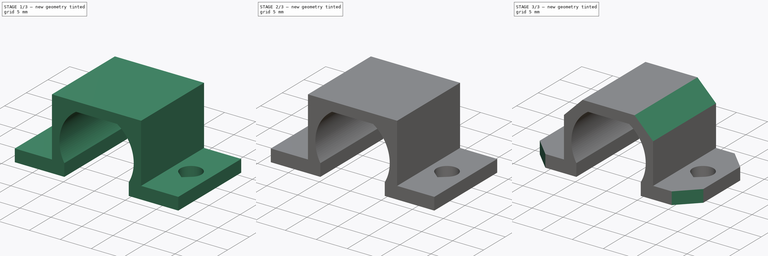
[diagram: build sequence overview — one tinted view per stage of 3, left to right]
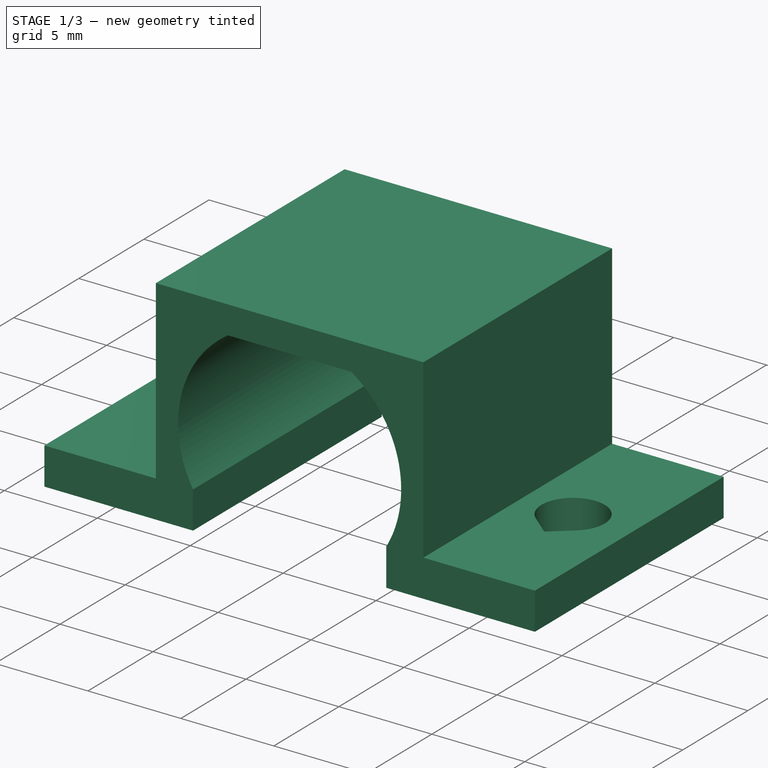
[diagram: stage 1 of 3 — iso view after this stage's code; geometry added in this stage tinted green]
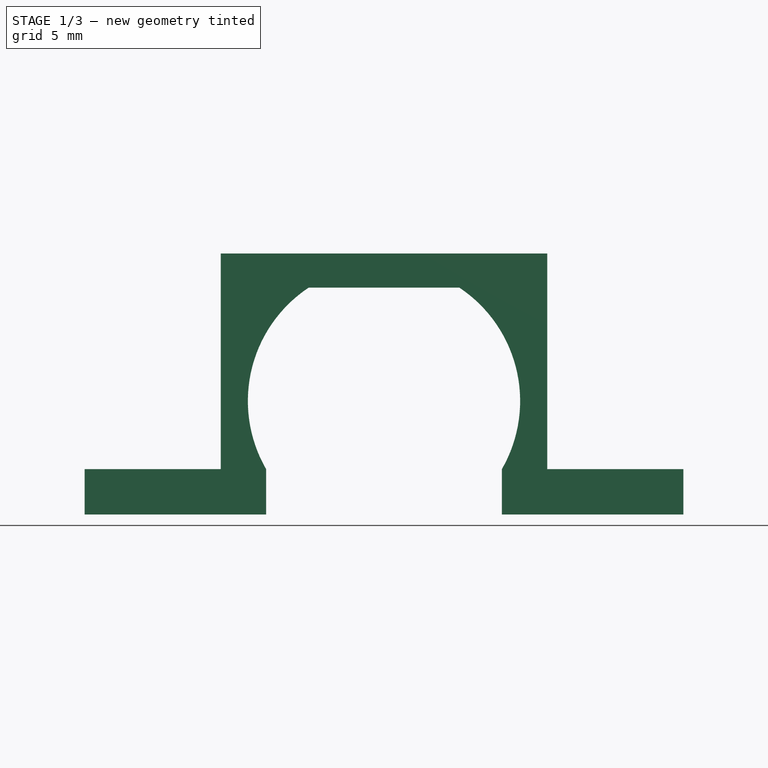
[diagram: stage 1 of 3 — front view after this stage's code; geometry added in this stage tinted green]
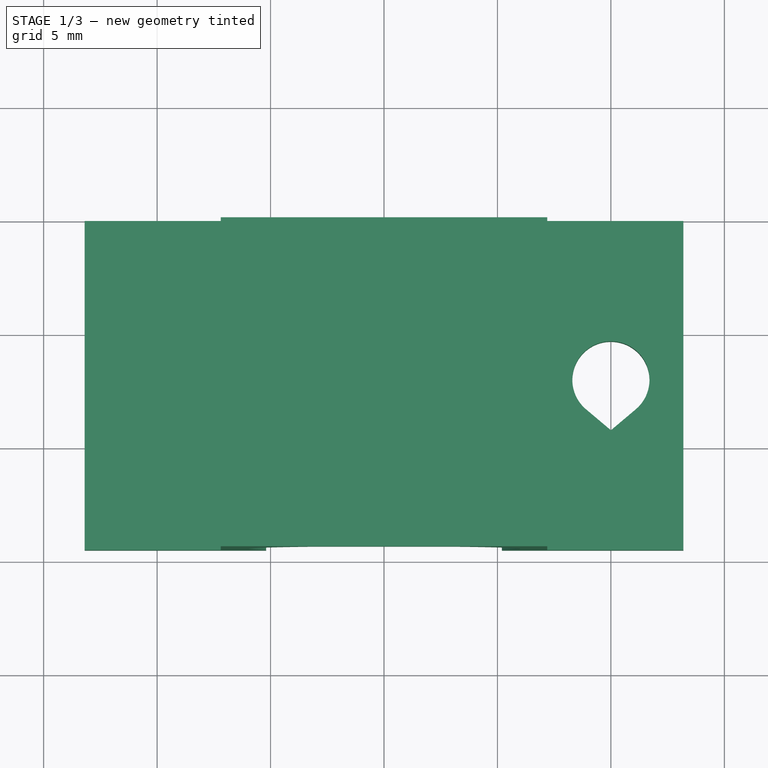
[diagram: stage 1 of 3 — top view after this stage's code; geometry added in this stage tinted green]
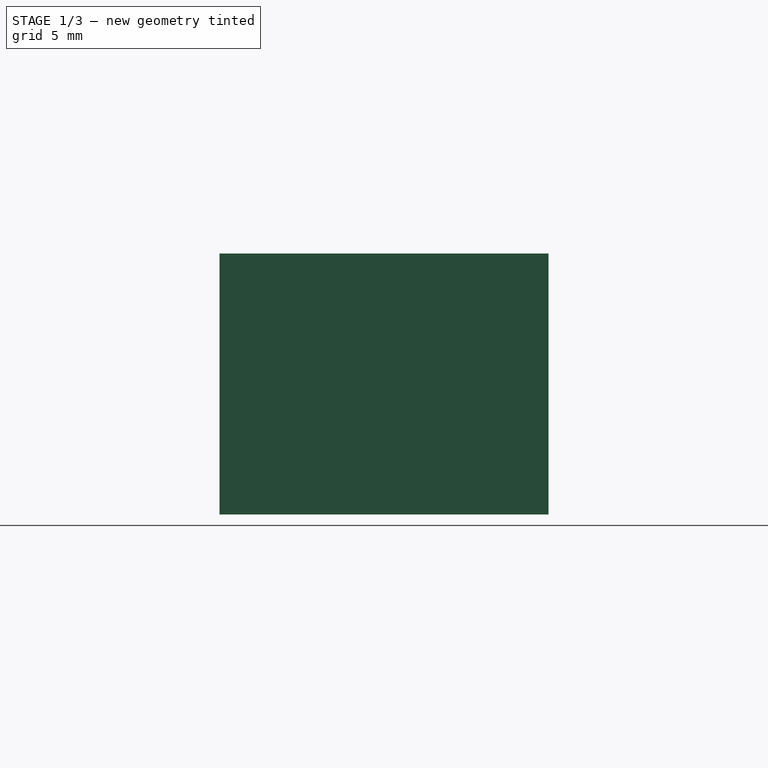
[diagram: stage 1 of 3 — right view after this stage's code; geometry added in this stage tinted green]
FCSTD DOCUMENT  (FreeCAD 0.18R4 (GitTag))
Label: montura_motor_N20
License: All rights reserved
LicenseURL: http://en.wikipedia.org/wiki/All_rights_reserved
objects: Sketcher::SketchObject×2, PartDesign::Chamfer×2, PartDesign::Pad×1, PartDesign::Pocket×1, PartDesign::Mirrored×1, PartDesign::Body×1
note: 10 computed .brp shape members not serialized (recipe doc carries the construction recipe); baked Part::Feature solids carry a one-line shape summary decoded from their .brp

FEATURE [Sketcher::SketchObject] Sketch
  MapMode = 5
  Placement = pos=(0,0,0) rot=(1,0,0;1.5708rad)
  Support = -> [XZ_Plane]
  sketch-geometry (14):
    g0: ArcOfCircle CenterX=0 CenterY=5 CenterZ=0 NormalX=0 NormalY=0 NormalZ=1 AngleXU=0 Radius=6 StartAngle=2.15648 EndAngle=3.66519
    g1: LineSegment StartX=-13.1962 StartY=0 StartZ=0 EndX=-5.19615 EndY=0 EndZ=0
    g2: LineSegment StartX=5.19615 StartY=0 StartZ=0 EndX=13.1962 EndY=0 EndZ=0
    g3: LineSegment StartX=13.1962 StartY=0 StartZ=0 EndX=13.1962 EndY=2 EndZ=0
    g4: LineSegment StartX=13.1962 StartY=2 StartZ=0 EndX=7.19615 EndY=2 EndZ=0
    g5: LineSegment StartX=7.19615 StartY=2 StartZ=0 EndX=7.19615 EndY=11.5 EndZ=0
    g6: LineSegment StartX=7.19615 StartY=11.5 StartZ=0 EndX=-7.19615 EndY=11.5 EndZ=0
    g7: LineSegment StartX=-7.19615 StartY=11.5 StartZ=0 EndX=-7.19615 EndY=2 EndZ=0
    g8: LineSegment StartX=-7.19615 StartY=2 StartZ=0 EndX=-13.1962 EndY=2 EndZ=0
    g9: LineSegment StartX=-13.1962 StartY=2 StartZ=0 EndX=-13.1962 EndY=0 EndZ=0
    g10: LineSegment StartX=-3.31662 StartY=10 StartZ=0 EndX=3.31662 EndY=10 EndZ=0
    g11: ArcOfCircle CenterX=0 CenterY=5 CenterZ=0 NormalX=0 NormalY=0 NormalZ=1 AngleXU=0 Radius=6 StartAngle=5.75959 EndAngle=7.2683
    g12: LineSegment StartX=-5.19615 StartY=2 StartZ=0 EndX=-5.19615 EndY=0 EndZ=0
    g13: LineSegment StartX=5.19615 StartY=2 StartZ=0 EndX=5.19615 EndY=0 EndZ=0
  constraints (41):
    c: Coincident(g2,g3)
    c: Coincident(g3,g4)
    c: Coincident(g4,g5)
    c: Coincident(g5,g6)
    c: Coincident(g6,g7)
    c: Coincident(g7,g8)
    c: Coincident(g8,g9)
    c: Coincident(g1,g9)
    c: Horizontal(g1)
    c: Horizontal(g8)
    c: Horizontal(g6)
    c: Horizontal(g4)
    c: Horizontal(g2)
    c: Vertical(g3)
    c: Vertical(g5)
    c: Vertical(g7)
    c: Vertical(g9)
    c: Symmetric(g4,g7,g-2)
    c: Equal(g4,g8)
    c: Radius(g0) = 6
    c: PointOnObject(g0,g-2)
    c: DistanceY(g-1,g0) = 5
    c: Coincident(g11,g10)
    c: Coincident(g0,g10)
    c: Horizontal(g10)
    c: DistanceY(g-1,g11) = 10
    c: Coincident(g0,g11)
    c: Coincident(g13,g11)
    c: Coincident(g13,g2)
    c: Coincident(g12,g1)
    c: Coincident(g12,g0)
    c: Vertical(g12)
    c: Vertical(g13)
    c: Symmetric(g0,g11,g-2)
    c: Horizontal(g0,g7)
    c: Distance(g9) = 2
    c: DistanceY(g0,g6) = 1.5
    c: Distance(g7,g0) = 2
    c: PointOnObject(g1,g-1)
    c: PointOnObject(g2,g-1)
    c: Distance(g8) = 6
FEATURE [PartDesign::Pad] Pad
  Length = 14.5
  Length2 = 100
  Placement = pos=(0,0,0) rot=(1,0,0;1.5708rad)
  Profile = -> Sketch
  Type = 0
FEATURE [Sketcher::SketchObject] Sketch001
  MapMode = 5
  Placement = pos=(0,-4e-16,2) rot=(0,0,1;3.14159rad)
  Support = -> [Pad]
  sketch-geometry (3):
    g0: ArcOfCircle CenterX=-10 CenterY=7 CenterZ=0 NormalX=0 NormalY=0 NormalZ=1 AngleXU=0 Radius=1.7 StartAngle=2.27085 EndAngle=7.15393
    g1: LineSegment StartX=-11.0952 StartY=8.30018 StartZ=0 EndX=-10 EndY=9.22278 EndZ=0
    g2: LineSegment StartX=-10 StartY=9.22278 StartZ=0 EndX=-8.90476 EndY=8.30018 EndZ=0
  constraints (8):
    c: Radius(g0) = 1.7
    c: DistanceY(g-1,g0) = 7
    c: DistanceX(g0,g-1) = 10
    c: Coincident(g1,g2)
    c: Tangent(g1,g0) = 1.5708
    c: Tangent(g2,g0) = 1.5708
    c: Vertical(g0,g1)
    c: Angle(g-1,g1) = 0.700052
FEATURE [PartDesign::Pocket] Pocket
  BaseFeature = -> Pad
  Length = 5
  Length2 = 100
  Placement = pos=(0,0,0) rot=(1,0,0;1.5708rad)
  Profile = -> Sketch001
  Type = 0
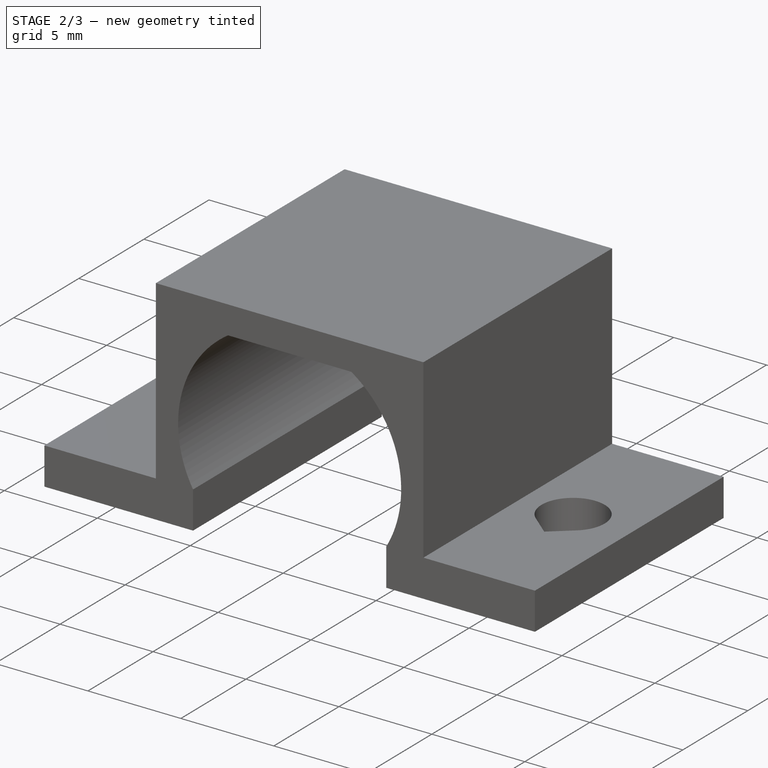
[diagram: stage 2 of 3 — iso view after this stage's code; geometry added in this stage tinted green]
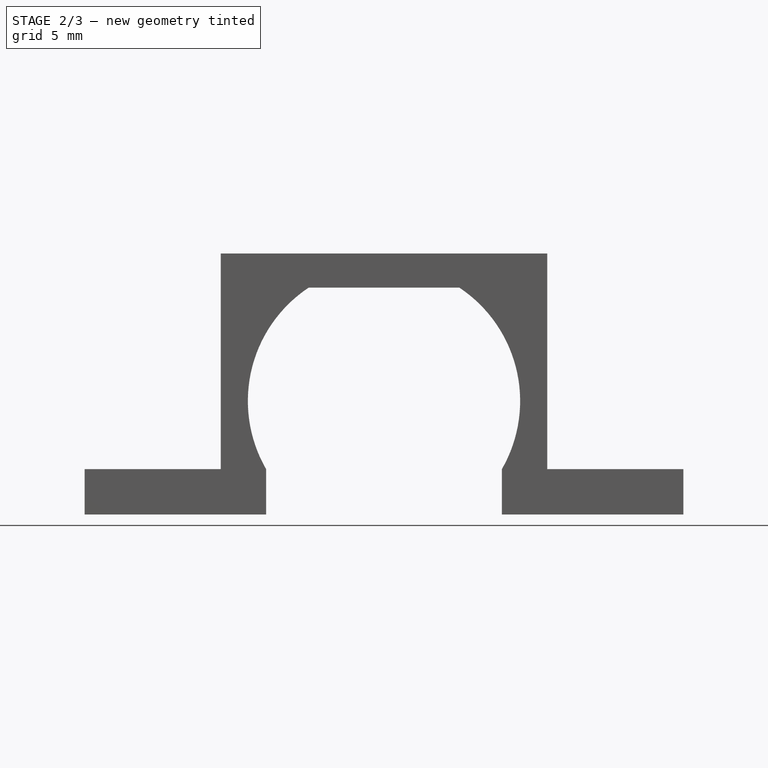
[diagram: stage 2 of 3 — front view after this stage's code; geometry added in this stage tinted green]
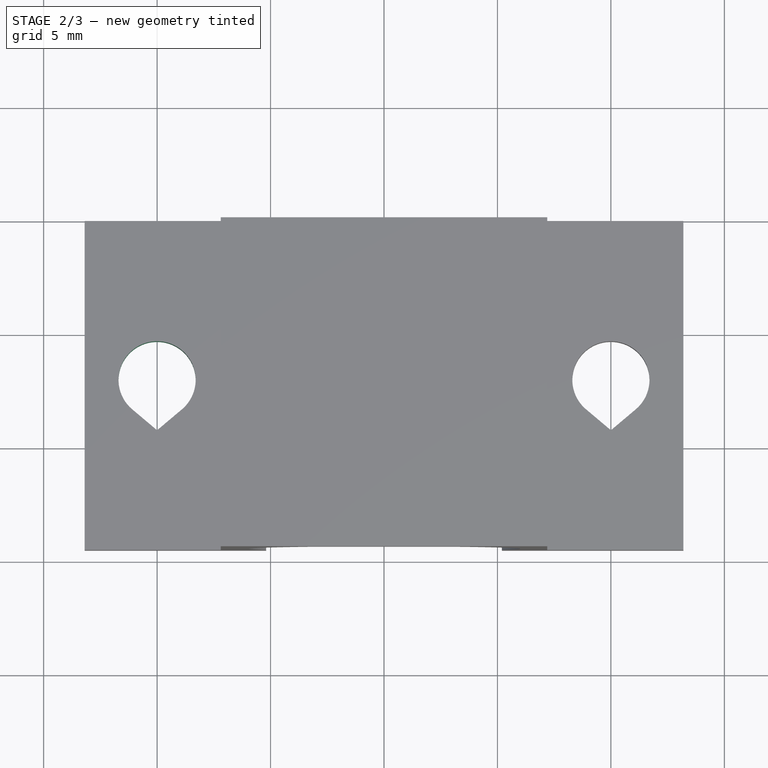
[diagram: stage 2 of 3 — top view after this stage's code; geometry added in this stage tinted green]
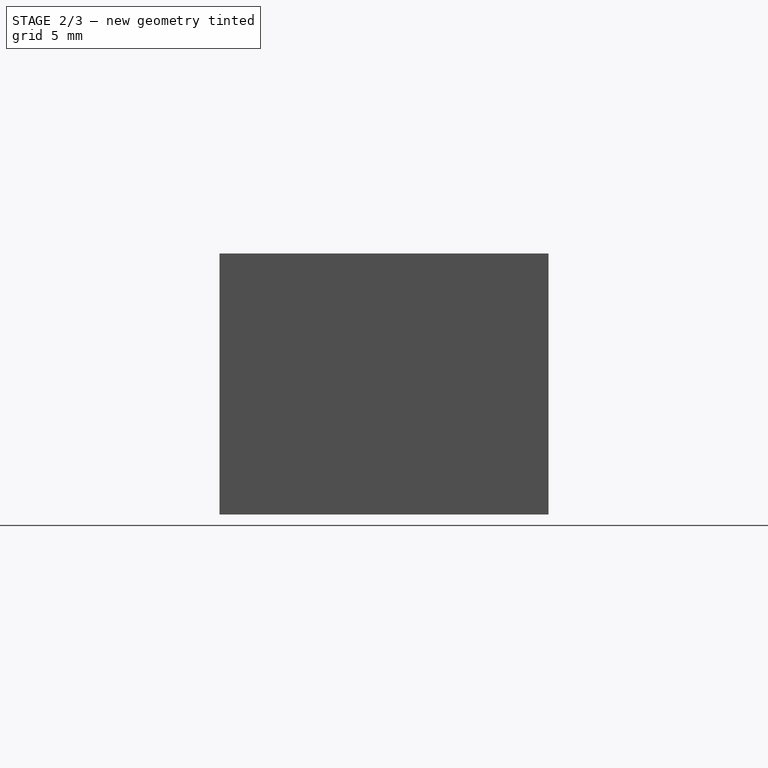
[diagram: stage 2 of 3 — right view after this stage's code; geometry added in this stage tinted green]
FEATURE [PartDesign::Mirrored] Mirrored
  BaseFeature = -> Pocket
  MirrorPlane = -> YZ_Plane
  Originals = -> [Pocket]
  Placement = pos=(0,0,0) rot=(1,0,0;1.5708rad)
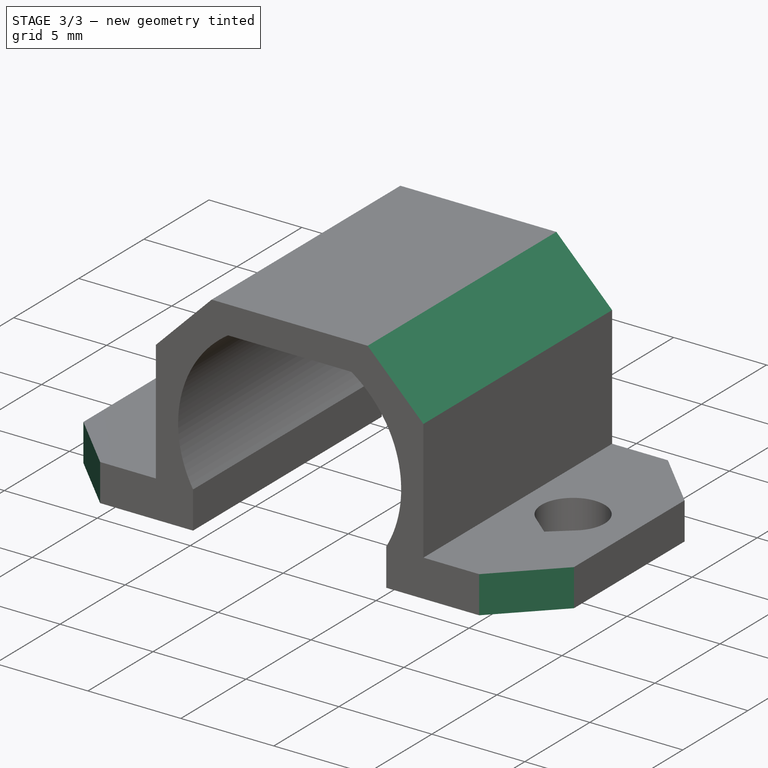
[diagram: stage 3 of 3 — iso view after this stage's code; geometry added in this stage tinted green]
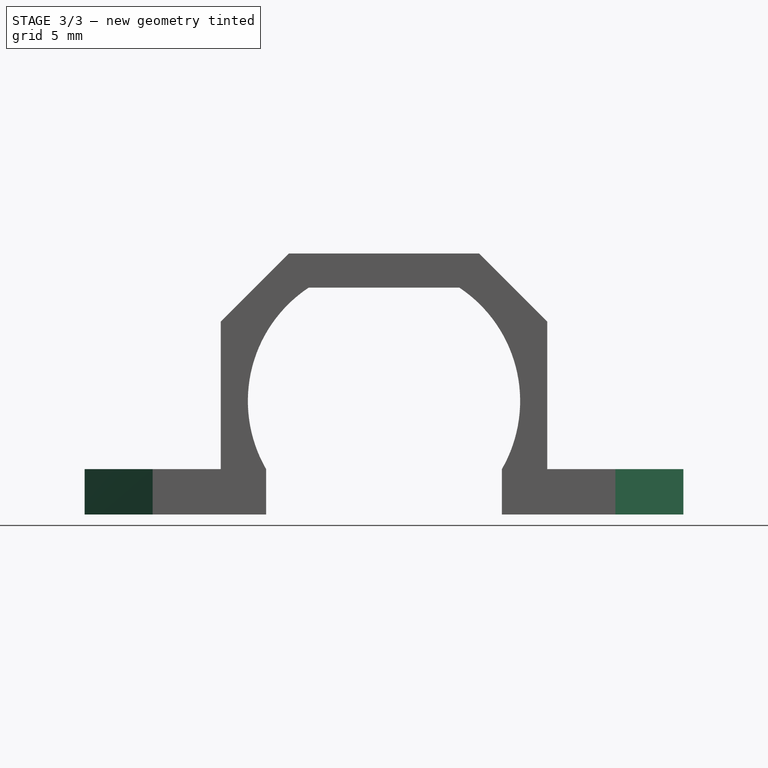
[diagram: stage 3 of 3 — front view after this stage's code; geometry added in this stage tinted green]
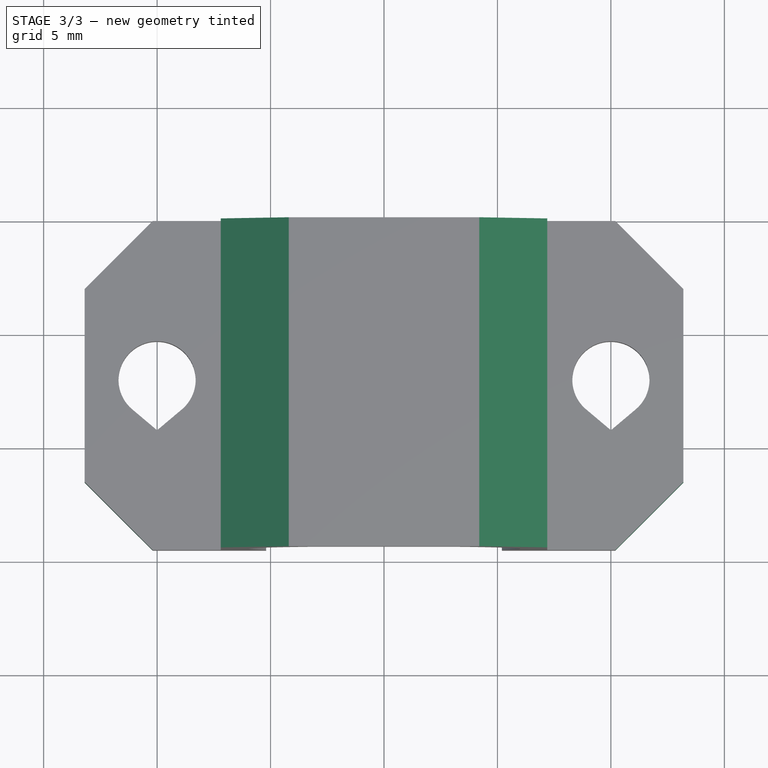
[diagram: stage 3 of 3 — top view after this stage's code; geometry added in this stage tinted green]
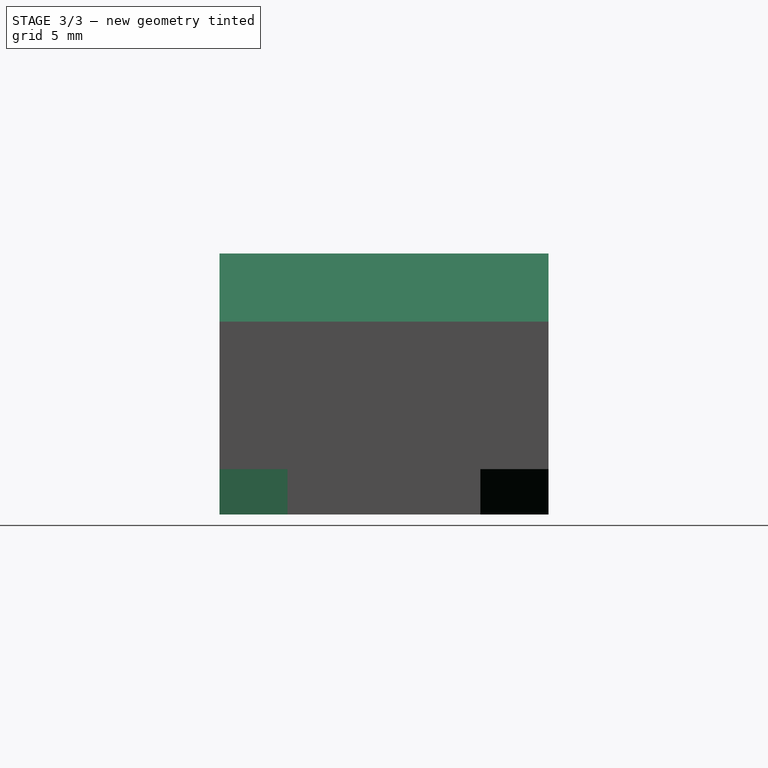
[diagram: stage 3 of 3 — right view after this stage's code; geometry added in this stage tinted green]
FEATURE [PartDesign::Chamfer] Chamfer
  Base = -> Mirrored [Edge48,Edge49]
  BaseFeature = -> Mirrored
  Placement = pos=(0,0,0) rot=(1,0,0;1.5708rad)
  Size = 3
FEATURE [PartDesign::Chamfer] Chamfer001
  Base = -> Chamfer [Edge30,Edge50,Edge12,Edge5]
  BaseFeature = -> Chamfer
  Placement = pos=(0,0,0) rot=(1,0,0;1.5708rad)
  Size = 3
FEATURE [PartDesign::Body] Body
  Group = -> [Sketch,Pad,Sketch001,Pocket,Mirrored,Chamfer,Chamfer001]
  Origin = -> Origin
  Tip = -> Chamfer001
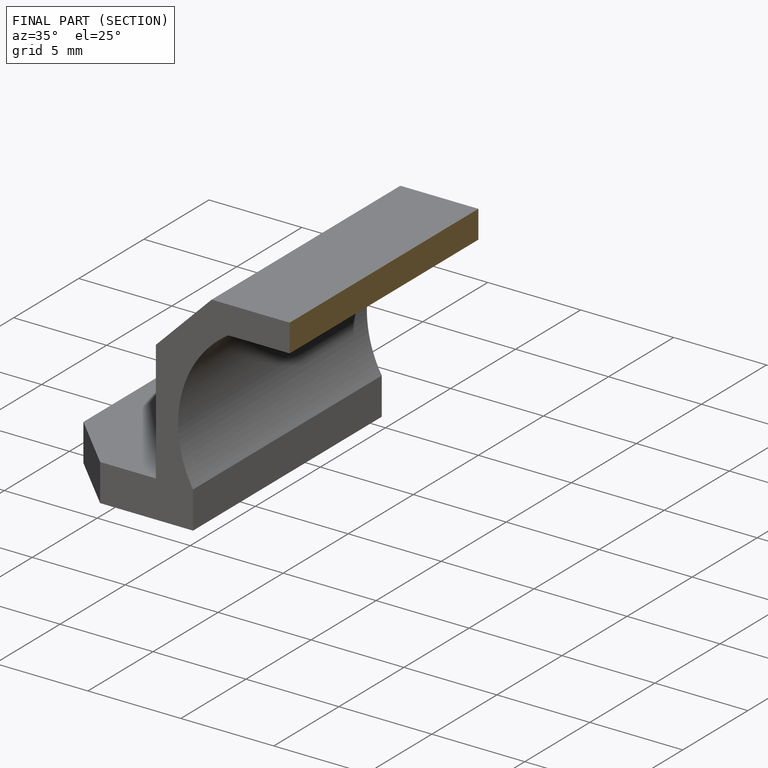
[diagram: finished part — half-section view (interior)]
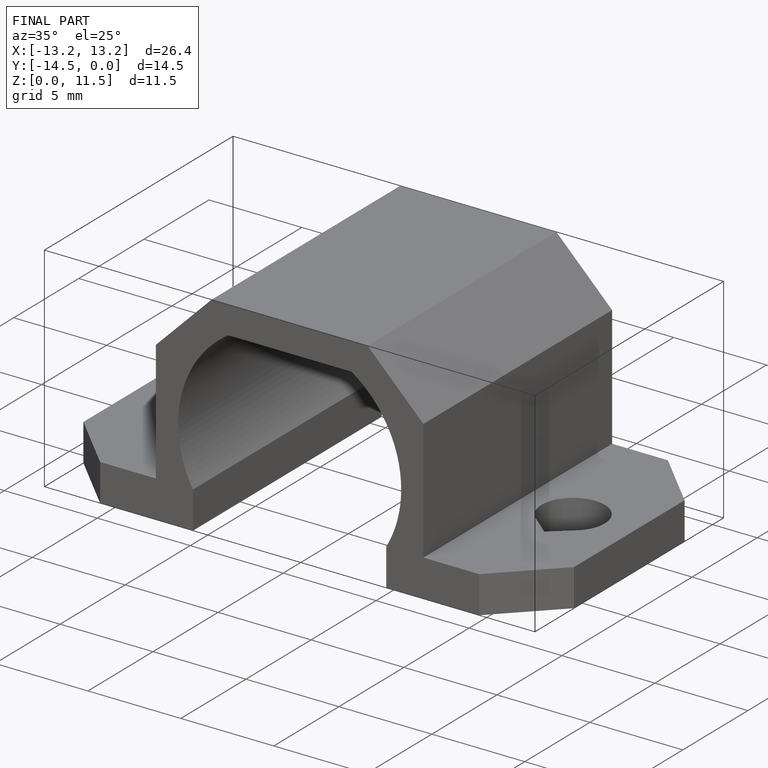
[diagram: finished part — iso view with bounding-box wireframe]
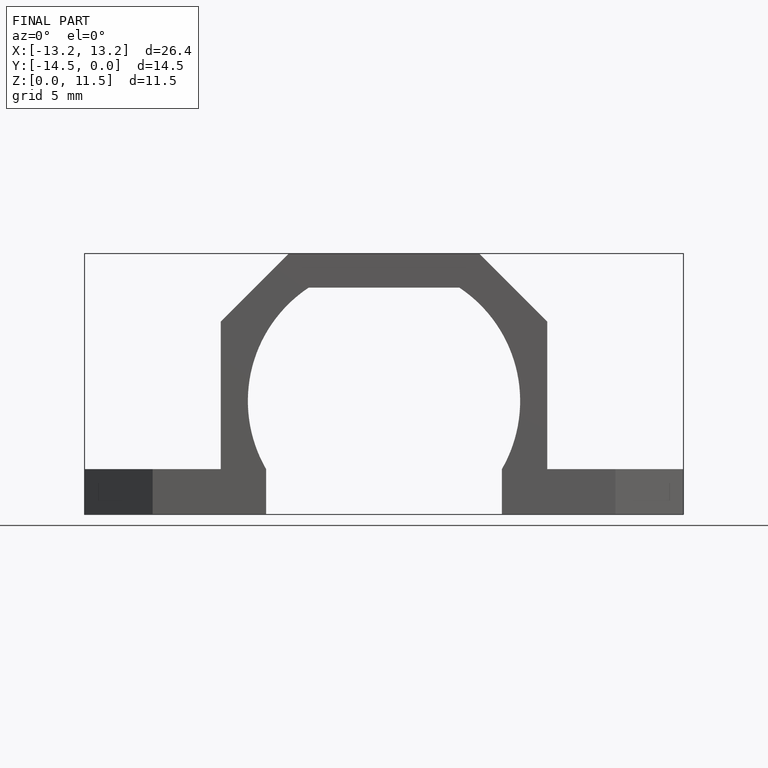
[diagram: finished part — front view with bounding-box wireframe]
